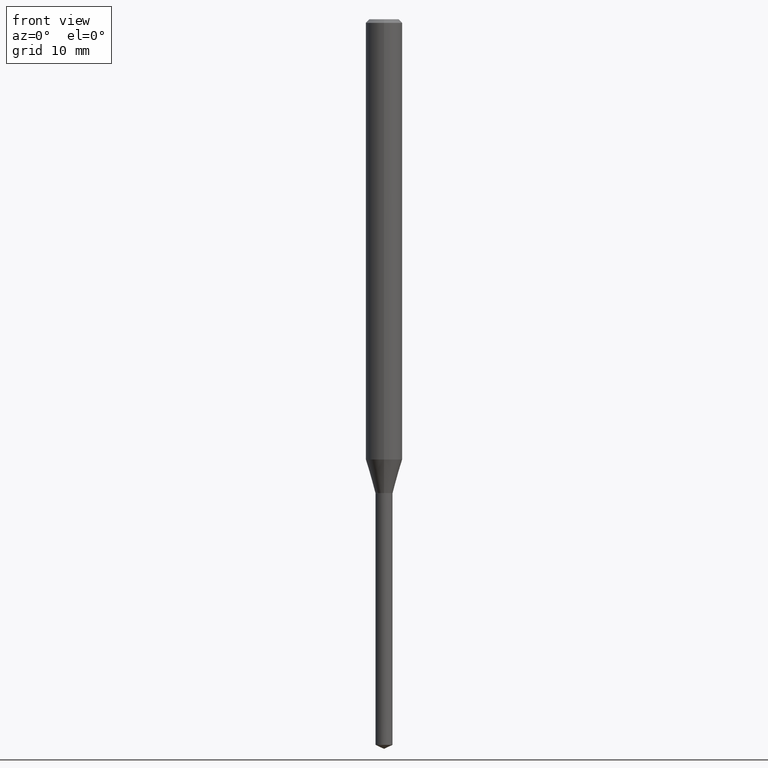
[diagram: clean part render]
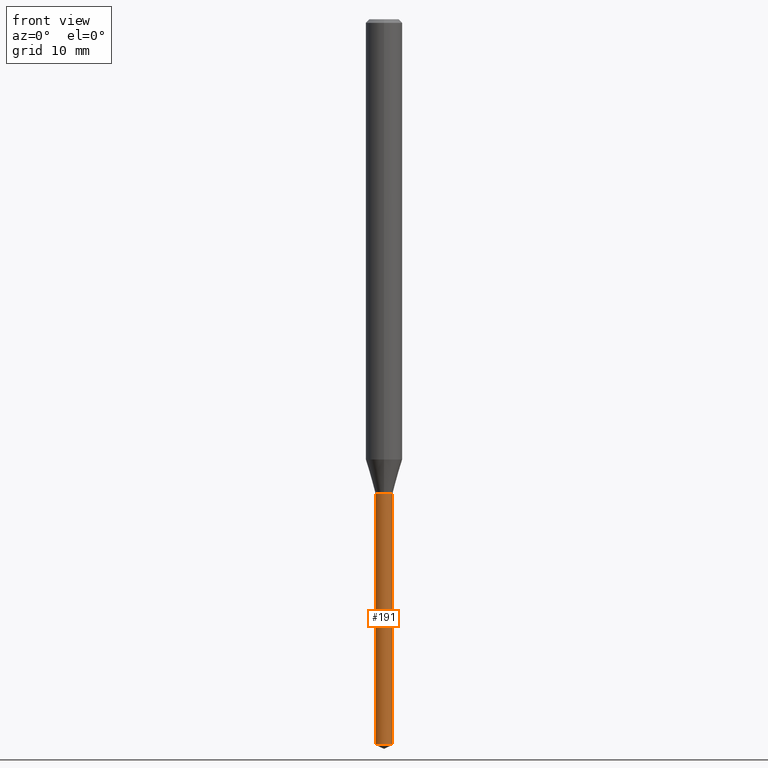
[diagram: same view with one face highlighted and labeled with its STEP entity id]
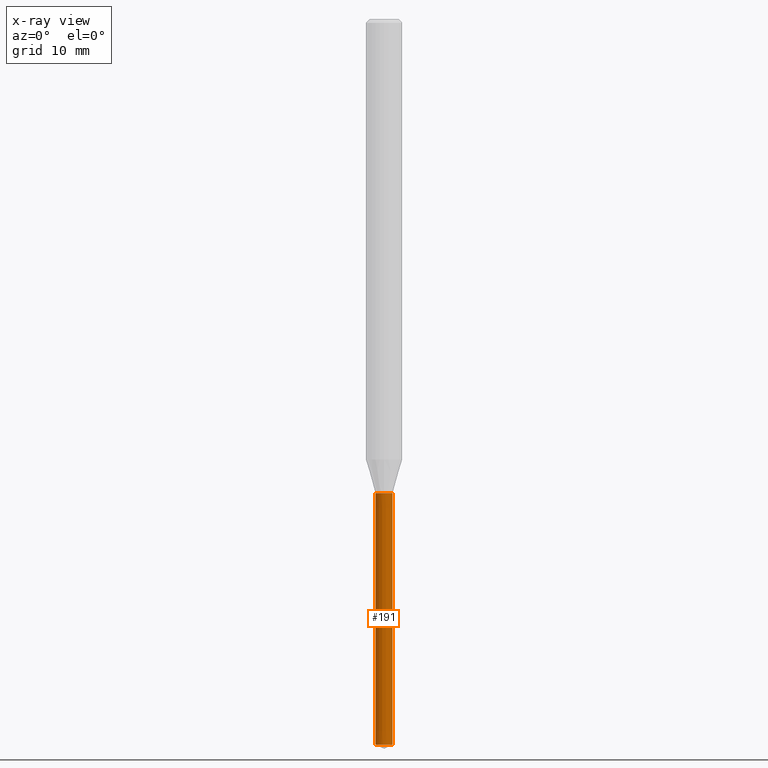
[diagram: x-ray of the same camera — body ghosted, the highlighted face saturated]
A machine part, front view. The second image highlights one B-rep face of the part: STEP entity #191.
The next image is the same camera in x-ray: the body ghosted, the highlighted face saturated — about 0% of this face is hidden behind the body in this view.
In plain terms, the highlighted conical surface has half-angle 0.003 deg.
Its self-contained STEP definition (entity closure, byte-faithful):
#99=VERTEX_POINT('',#235);
#107=EDGE_CURVE('',#99,#169,#244,.T.);
#121=EDGE_CURVE('',#99,#201,#261,.T.);
#165=VERTEX_POINT('',#310);
#169=VERTEX_POINT('',#314);
#187=EDGE_CURVE('',#165,#201,#336,.T.);
#191=ADVANCED_FACE('',(#340),#341,.T.);
#201=VERTEX_POINT('',#351);
#205=EDGE_CURVE('',#169,#165,#355,.T.);
#235=CARTESIAN_POINT('',(0.7,8.57224447675664E-017,-59.67358464));
#244=LINE('',#393,#394);
#261=CIRCLE('',#412,0.7);
#310=CARTESIAN_POINT('',(-0.701,0.0,-39.0));
#314=CARTESIAN_POINT('',(0.701,8.58449054029486E-017,-39.0));
#336=LINE('',#504,#505);
#340=FACE_OUTER_BOUND('',#510,.T.);
#341=CONICAL_SURFACE('',#511,0.7005,4.83709050284995E-005);
#351=CARTESIAN_POINT('',(-0.7,0.0,-59.67358464));
#355=CIRCLE('',#533,0.701);
#393=CARTESIAN_POINT('',(0.7005,8.57836750852575E-017,-49.33679232));
#394=VECTOR('',#559,1.0);
#412=AXIS2_PLACEMENT_3D('',#582,#583,#584);
#504=CARTESIAN_POINT('',(-0.7005,-8.57836750852575E-017,-49.33679232));
#505=VECTOR('',#682,1.0);
#510=EDGE_LOOP('',(#687,#688,#689,#690));
#511=AXIS2_PLACEMENT_3D('',#691,#692,#693);
#533=AXIS2_PLACEMENT_3D('',#700,#701,#702);
#559=DIRECTION('',(4.83709050096369E-005,5.923531761494E-021,0.999999998830128));
#582=CARTESIAN_POINT('',(0.0,0.0,-59.67358464));
#583=DIRECTION('',(0.0,0.0,-1.0));
#584=DIRECTION('',(-1.0,0.0,0.0));
#682=DIRECTION('',(4.83709050096369E-005,5.923531761494E-021,-0.999999998830128));
#687=ORIENTED_EDGE('',*,*,#187,.T.);
#688=ORIENTED_EDGE('',*,*,#121,.F.);
#689=ORIENTED_EDGE('',*,*,#107,.T.);
#690=ORIENTED_EDGE('',*,*,#205,.T.);
#691=CARTESIAN_POINT('',(0.0,0.0,-49.33679232));
#692=DIRECTION('',(-0.0,-0.0,1.0));
#693=DIRECTION('',(-1.0,0.0,0.0));
#700=CARTESIAN_POINT('',(0.0,0.0,-39.0));
#701=DIRECTION('',(0.0,0.0,-1.0));
#702=DIRECTION('',(-1.0,0.0,0.0));